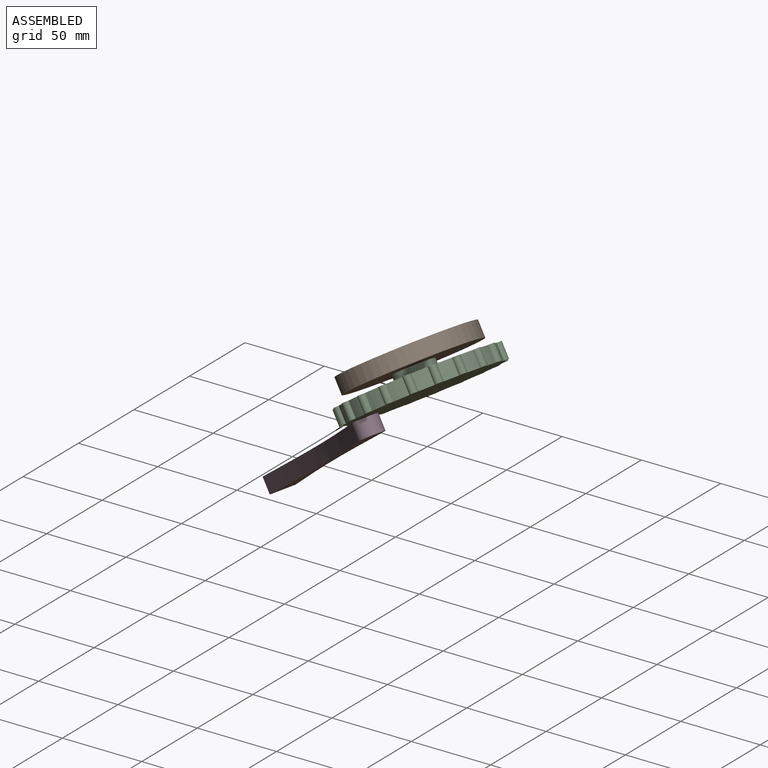
[diagram: assembled view]
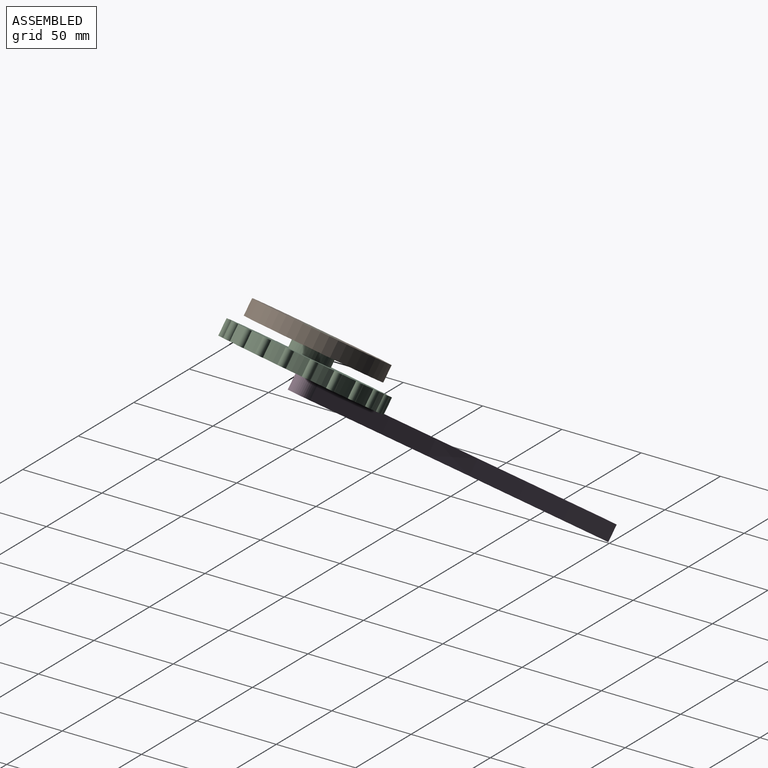
[diagram: assembled view, second angle]
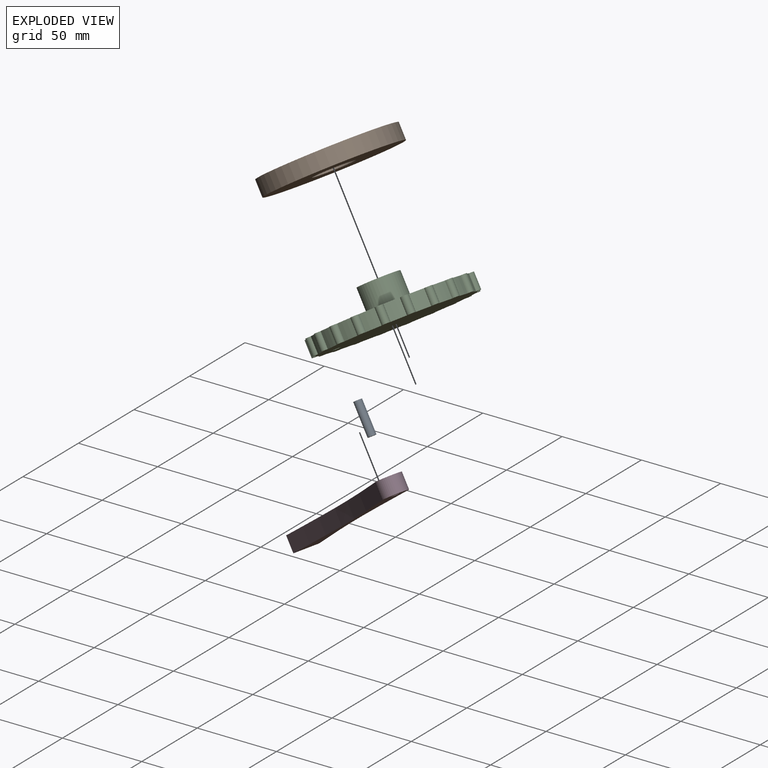
[diagram: exploded view]
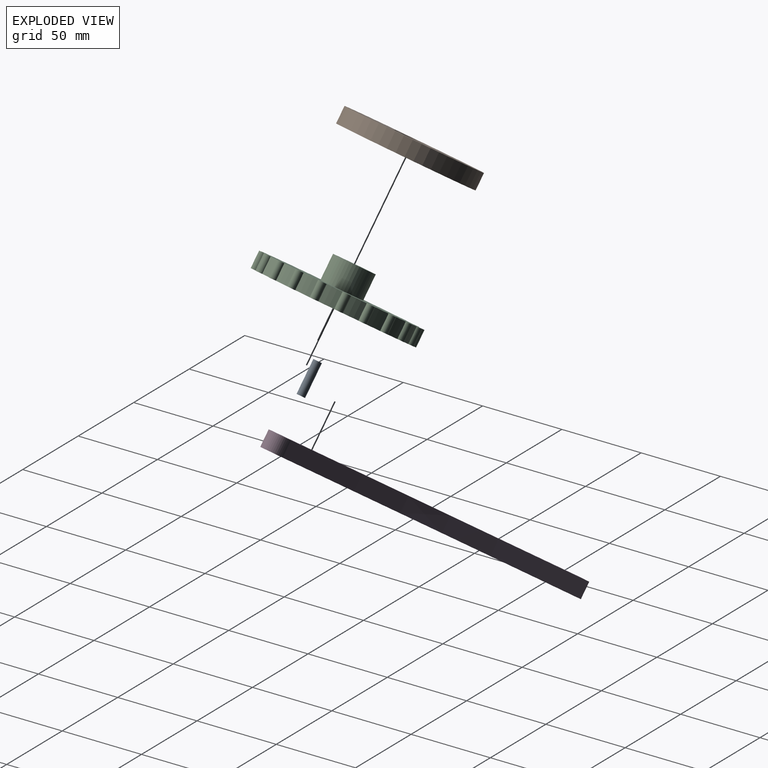
[diagram: exploded view, second angle]
ASSEMBLY  parts=4 mates=3
PART A: 3 faces, bbox 4.9x4.9x20 mm
  f0: cylinder r=2.45mm len=20mm, axis (0,0,1), area 307.9mm2, adj f1,f2
  f1: plane 4.9x4.9mm, normal (0,0,-1), area 18.9mm2, adj f0
  f2: plane 4.9x4.9mm, normal (0,0,1), area 18.9mm2, adj f0
PART B: 4 faces, bbox 80x80x10 mm
  f0: cylinder r=12.5mm len=25mm, axis (0,0,-1), area 785.4mm2, adj f2,f3
  f1: cylinder r=40mm len=80mm, axis (0,0,-1), area 2513.3mm2, adj f2,f3
  f2: plane 80x80mm, normal (0,0,1), area 4535.7mm2, adj f0,f1
  f3: plane 80x80mm, normal (0,0,-1), area 4535.7mm2, adj f0,f1
PART C: 45 faces, bbox 94.4x94.4x25 mm
  f0: cylinder r=12.25mm len=24.5mm, axis (0,0,-1), area 1154.5mm2, adj f1,f44
  f1: plane 24.5x24.5mm, normal (0,0,-1), area 471.4mm2, adj f0
  f2: cylinder r=2.5mm len=10mm, axis (0,0,-1), area 79.9mm2, adj f3,f41,f43,f44
  f3: cylinder r=45mm len=10mm, axis (0,0,-1), area 91.4mm2, adj f2,f4,f43,f44
  f4: cylinder r=2.5mm len=10mm, axis (0,0,-1), area 79.9mm2, adj f3,f5,f43,f44
  f5: cylinder r=45mm len=10mm, axis (0,0,-1), area 91.4mm2, adj f4,f6,f43,f44
  f6: cylinder r=2.5mm len=10mm, axis (0,0,-1), area 79.9mm2, adj f5,f7,f43,f44
  f7: cylinder r=45mm len=10mm, axis (0,0,-1), area 91.4mm2, adj f6,f8,f43,f44
  f8: cylinder r=2.5mm len=10mm, axis (0,0,-1), area 79.9mm2, adj f7,f9,f43,f44
  f9: cylinder r=45mm len=10mm, axis (0,0,-1), area 91.4mm2, adj f8,f10,f43,f44
  f10: cylinder r=2.5mm len=10mm, axis (0,0,-1), area 79.9mm2, adj f9,f11,f43,f44
  f11: cylinder r=45mm len=10mm, axis (0,0,-1), area 91.4mm2, adj f10,f12,f43,f44
  f12: cylinder r=2.5mm len=10mm, axis (0,0,-1), area 79.9mm2, adj f11,f13,f43,f44
  f13: cylinder r=45mm len=10mm, axis (0,0,-1), area 91.4mm2, adj f12,f14,f43,f44
  f14: cylinder r=2.5mm len=10mm, axis (0,0,-1), area 79.9mm2, adj f13,f15,f43,f44
  f15: cylinder r=45mm len=10mm, axis (0,0,-1), area 91.4mm2, adj f14,f16,f43,f44
  f16: cylinder r=2.5mm len=10mm, axis (0,0,-1), area 79.9mm2, adj f15,f17,f43,f44
  f17: cylinder r=45mm len=10mm, axis (0,0,-1), area 91.4mm2, adj f16,f18,f43,f44
  f18: cylinder r=2.5mm len=10mm, axis (0,0,-1), area 79.9mm2, adj f17,f19,f43,f44
  f19: cylinder r=45mm len=10mm, axis (0,0,-1), area 91.4mm2, adj f18,f20,f43,f44
  f20: cylinder r=2.5mm len=10mm, axis (0,0,-1), area 79.9mm2, adj f19,f21,f43,f44
  f21: cylinder r=45mm len=10mm, axis (0,0,-1), area 91.4mm2, adj f20,f22,f43,f44
  f22: cylinder r=2.5mm len=10mm, axis (0,0,-1), area 79.9mm2, adj f21,f23,f43,f44
  f23: cylinder r=45mm len=10mm, axis (0,0,-1), area 91.4mm2, adj f22,f24,f43,f44
  f24: cylinder r=2.5mm len=10mm, axis (0,0,-1), area 79.9mm2, adj f23,f25,f43,f44
  f25: cylinder r=45mm len=10mm, axis (0,0,-1), area 91.4mm2, adj f24,f26,f43,f44
  f26: cylinder r=2.5mm len=10mm, axis (0,0,-1), area 79.9mm2, adj f25,f27,f43,f44
  f27: cylinder r=45mm len=10mm, axis (0,0,-1), area 91.4mm2, adj f26,f28,f43,f44
  f28: cylinder r=2.5mm len=10mm, axis (0,0,-1), area 79.9mm2, adj f27,f29,f43,f44
  f29: cylinder r=45mm len=10mm, axis (0,0,-1), area 91.4mm2, adj f28,f30,f43,f44
  f30: cylinder r=2.5mm len=10mm, axis (0,0,-1), area 79.9mm2, adj f29,f31,f43,f44
  f31: cylinder r=45mm len=10mm, axis (0,0,-1), area 91.4mm2, adj f30,f32,f43,f44
  f32: cylinder r=2.5mm len=10mm, axis (0,0,-1), area 79.9mm2, adj f31,f33,f43,f44
  f33: cylinder r=45mm len=10mm, axis (0,0,-1), area 91.4mm2, adj f32,f34,f43,f44
  f34: cylinder r=2.5mm len=10mm, axis (0,0,-1), area 79.9mm2, adj f33,f35,f43,f44
  f35: cylinder r=45mm len=10mm, axis (0,0,-1), area 91.4mm2, adj f34,f36,f43,f44
  f36: cylinder r=2.5mm len=10mm, axis (0,0,-1), area 79.9mm2, adj f35,f37,f43,f44
  f37: cylinder r=45mm len=10mm, axis (0,0,-1), area 91.4mm2, adj f36,f38,f43,f44
  f38: cylinder r=2.5mm len=10mm, axis (0,0,-1), area 79.9mm2, adj f37,f39,f43,f44
  f39: cylinder r=45mm len=10mm, axis (0,0,-1), area 91.4mm2, adj f38,f40,f43,f44
  f40: cylinder r=2.5mm len=10mm, axis (0,0,-1), area 79.9mm2, adj f39,f41,f43,f44
  f41: cylinder r=45mm len=10mm, axis (0,0,-1), area 91.4mm2, adj f2,f40,f43,f44
  f42: cylinder r=2.5mm len=10mm, axis (0,0,-1), area 157.1mm2, adj f43,f44
  f43: plane 94.43x94.43mm, normal (0,0,1), area 6540.8mm2, adj f2,f3,f4,f5,f6,f7,f8,f9
  f44: plane 94.43x94.43mm, normal (0,0,-1), area 6069.3mm2, adj f0,f2,f3,f4,f5,f6,f7,f8
PART D: 7 faces, bbox 200x15x10 mm
  f0: extruded ~190x10mm, area 1902.9mm2, adj f1,f3,f5,f6
  f1: cylinder r=7.5mm len=15mm, axis (0,0,-1), area 286.6mm2, adj f0,f2,f5,f6
  f2: extruded ~190x10mm, area 1902.9mm2, adj f1,f3,f5,f6
  f3: plane 15x10mm, normal (1,0,0), area 150mm2, adj f0,f2,f5,f6
  f4: cylinder r=2.5mm len=10mm, axis (0,0,-1), area 157.1mm2, adj f5,f6
  f5: plane 200x15mm, normal (0,0,1), area 1739.7mm2, adj f0,f1,f2,f3,f4
  f6: plane 200x15mm, normal (0,0,-1), area 1739.7mm2, adj f0,f1,f2,f3,f4
PLACE A rot(axis=(-0.21,0.97,-0.14),149deg) t=(-104.15,97.18,96.72)mm
PLACE B rot(axis=(-0.21,0.97,-0.14),149deg) t=(-96.15,111.48,130.09)mm
PLACE C rot(axis=(-0.79,0.54,-0.28),168.3deg) t=(-96.15,111.48,130.09)mm
PLACE D rot(axis=(0.3,0.95,0.02),145.2deg) t=(-105,89.87,97.41)mm
MATE revolute C.f42 <-> A.f0  axis (0.55,-0.14,-0.82) through (-109.96,93.81,93.39)mm
MATE revolute A.f0 <-> D.f1  axis (0.55,-0.14,-0.82) through (-104.43,92.39,85.18)mm
MATE revolute C.f0 <-> B.f1  axis (-0.55,0.14,0.82) through (-96.15,111.48,130.09)mm
